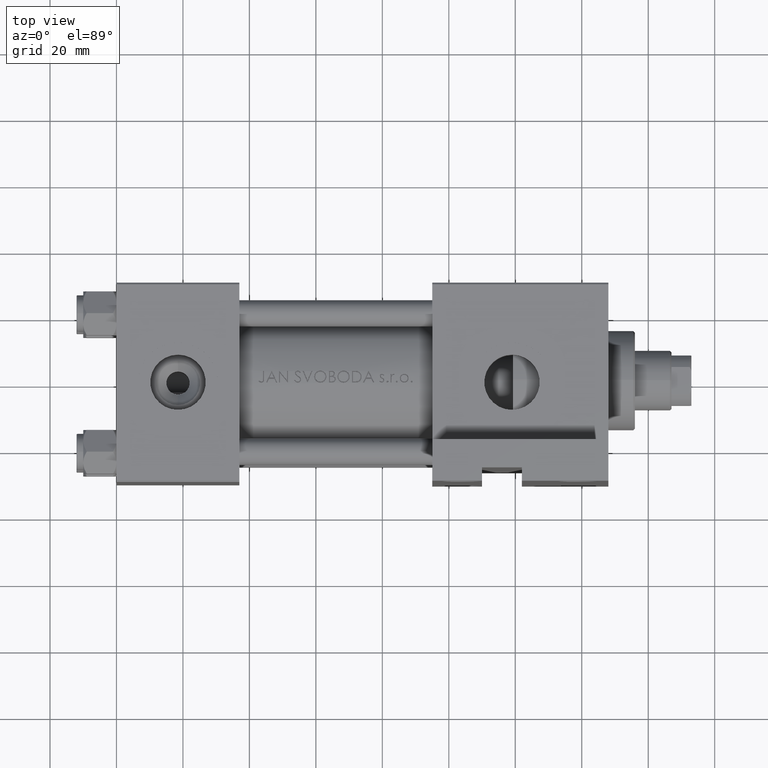
[diagram: clean part render]
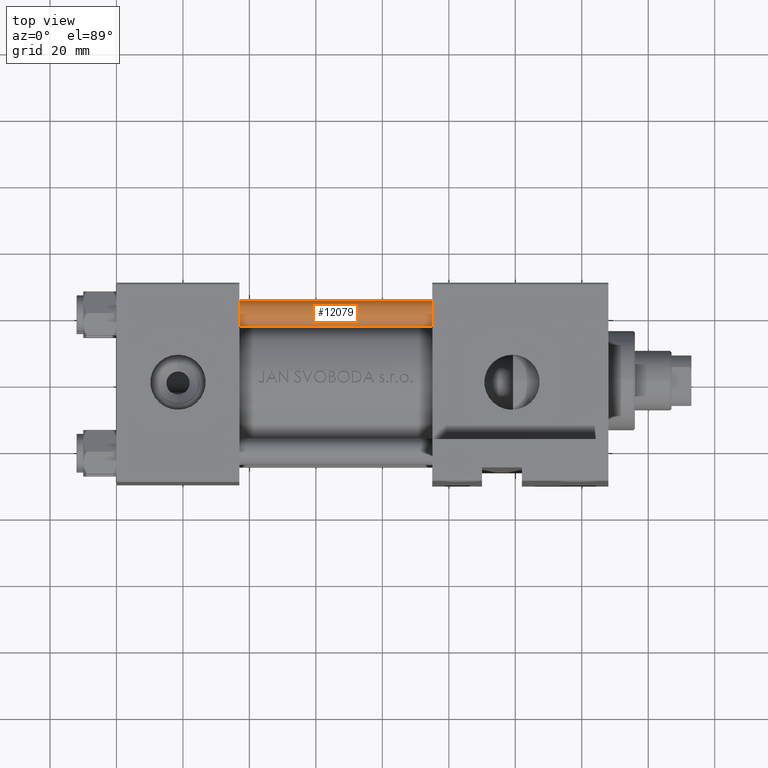
[diagram: same view with one face highlighted and labeled with its STEP entity id]
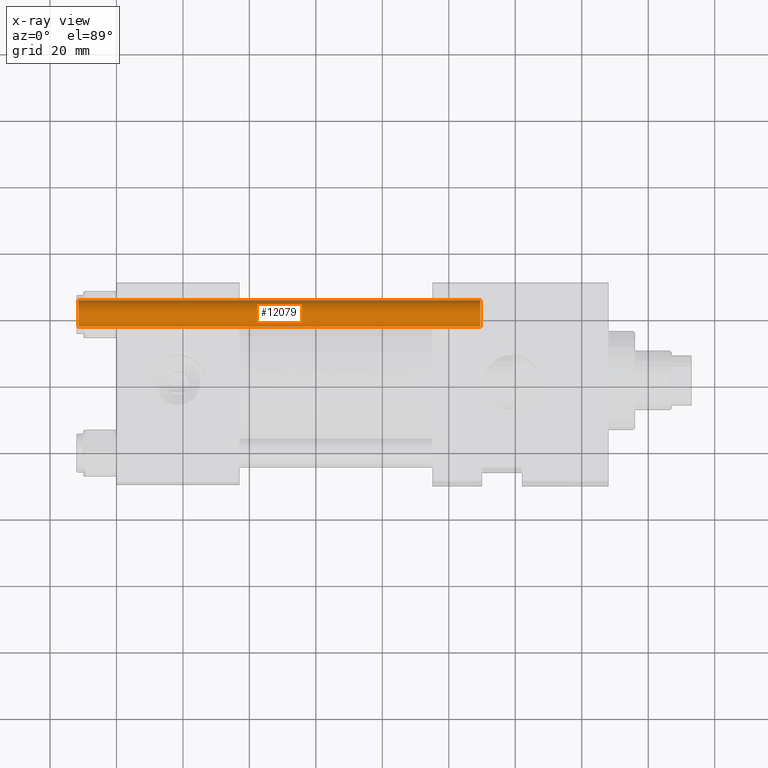
[diagram: x-ray of the same camera — body ghosted, the highlighted face saturated]
A machine part, top view. The second image highlights one B-rep face of the part: STEP entity #12079.
The next image is the same camera in x-ray: the body ghosted, the highlighted face saturated — about 0% of this face is hidden behind the body in this view.
In plain terms, the highlighted cylindrical surface (edge-blend (fillet) strip) has radius 4 mm, axis along (1, -0, 0).
Its self-contained STEP definition (entity closure, byte-faithful):
#655 = EDGE_CURVE ( 'NONE', #22342, #16074, #44355, .T. ) ;
#5086 = AXIS2_PLACEMENT_3D ( 'NONE', #24600, #35687, #13023 ) ;
#5698 = CIRCLE ( 'NONE', #24618, 4.000000000000000000 ) ;
#6605 = CIRCLE ( 'NONE', #34124, 4.000000000000000000 ) ;
#10605 = DIRECTION ( 'NONE',  ( -0.000000000000000000, -0.000000000000000000, -1.000000000000000000 ) ) ;
#12079 = ADVANCED_FACE ( 'NONE', ( #20668 ), #35933, .T. ) ;
#12466 = VECTOR ( 'NONE', #10605, 1000.000000000000000 ) ;
#12938 = DIRECTION ( 'NONE',  ( 1.000000000000000000, 0.000000000000000000, 0.000000000000000000 ) ) ;
#13023 = DIRECTION ( 'NONE',  ( -1.000000000000000000, 0.000000000000000000, 0.000000000000000000 ) ) ;
#14011 = CARTESIAN_POINT ( 'NONE',  ( 4.000000000000000000, 4.898587196589411843E-16, 0.5000000000000559552 ) ) ;
#16074 = VERTEX_POINT ( 'NONE', #14011 ) ;
#16892 = DIRECTION ( 'NONE',  ( -0.000000000000000000, -0.000000000000000000, 1.000000000000000000 ) ) ;
#18168 = EDGE_CURVE ( 'NONE', #40661, #48480, #37859, .T. ) ;
#19102 = ORIENTED_EDGE ( 'NONE', *, *, #655, .F. ) ;
#19609 = DIRECTION ( 'NONE',  ( 1.000000000000000000, 0.000000000000000000, 0.000000000000000000 ) ) ;
#20668 = FACE_OUTER_BOUND ( 'NONE', #29433, .T. ) ;
#22192 = ORIENTED_EDGE ( 'NONE', *, *, #43762, .T. ) ;
#22342 = VERTEX_POINT ( 'NONE', #32940 ) ;
#23549 = DIRECTION ( 'NONE',  ( 0.000000000000000000, 0.000000000000000000, -1.000000000000000000 ) ) ;
#24276 = CARTESIAN_POINT ( 'NONE',  ( 0.000000000000000000, 0.000000000000000000, 0.5000000000000559552 ) ) ;
#24324 = ORIENTED_EDGE ( 'NONE', *, *, #35099, .T. ) ;
#24600 = CARTESIAN_POINT ( 'NONE',  ( 0.000000000000000000, 0.000000000000000000, 122.0000000000000000 ) ) ;
#24618 = AXIS2_PLACEMENT_3D ( 'NONE', #27239, #23549, #19609 ) ;
#24679 = CARTESIAN_POINT ( 'NONE',  ( 4.000000000000000000, 4.898587196589411843E-16, 122.0000000000000000 ) ) ;
#27239 = CARTESIAN_POINT ( 'NONE',  ( 0.000000000000000000, 0.000000000000000000, 121.5000000000000426 ) ) ;
#29433 = EDGE_LOOP ( 'NONE', ( #19102, #24324, #44055, #22192 ) ) ;
#30460 = CARTESIAN_POINT ( 'NONE',  ( -4.000000000000000000, 0.000000000000000000, 122.0000000000000000 ) ) ;
#32940 = CARTESIAN_POINT ( 'NONE',  ( 4.000000000000000000, 4.898587196589411843E-16, 121.5000000000000426 ) ) ;
#34124 = AXIS2_PLACEMENT_3D ( 'NONE', #24276, #16892, #12938 ) ;
#35099 = EDGE_CURVE ( 'NONE', #22342, #40661, #5698, .T. ) ;
#35687 = DIRECTION ( 'NONE',  ( -0.000000000000000000, -0.000000000000000000, -1.000000000000000000 ) ) ;
#35933 = CYLINDRICAL_SURFACE ( 'NONE', #5086, 4.000000000000000000 ) ;
#35988 = VECTOR ( 'NONE', #37374, 1000.000000000000000 ) ;
#37374 = DIRECTION ( 'NONE',  ( -0.000000000000000000, -0.000000000000000000, -1.000000000000000000 ) ) ;
#37859 = LINE ( 'NONE', #30460, #35988 ) ;
#38124 = CARTESIAN_POINT ( 'NONE',  ( -4.000000000000000000, 0.000000000000000000, 0.5000000000000559552 ) ) ;
#40661 = VERTEX_POINT ( 'NONE', #42500 ) ;
#42500 = CARTESIAN_POINT ( 'NONE',  ( -4.000000000000000000, 0.000000000000000000, 121.5000000000000426 ) ) ;
#43762 = EDGE_CURVE ( 'NONE', #48480, #16074, #6605, .T. ) ;
#44055 = ORIENTED_EDGE ( 'NONE', *, *, #18168, .T. ) ;
#44355 = LINE ( 'NONE', #24679, #12466 ) ;
#48480 = VERTEX_POINT ( 'NONE', #38124 ) ;